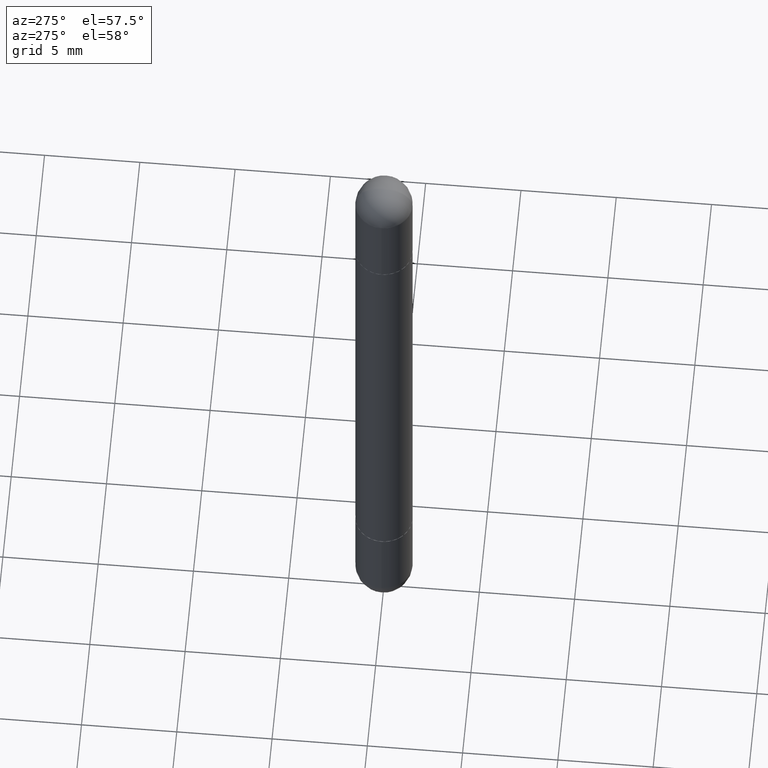
[diagram: clean part render]
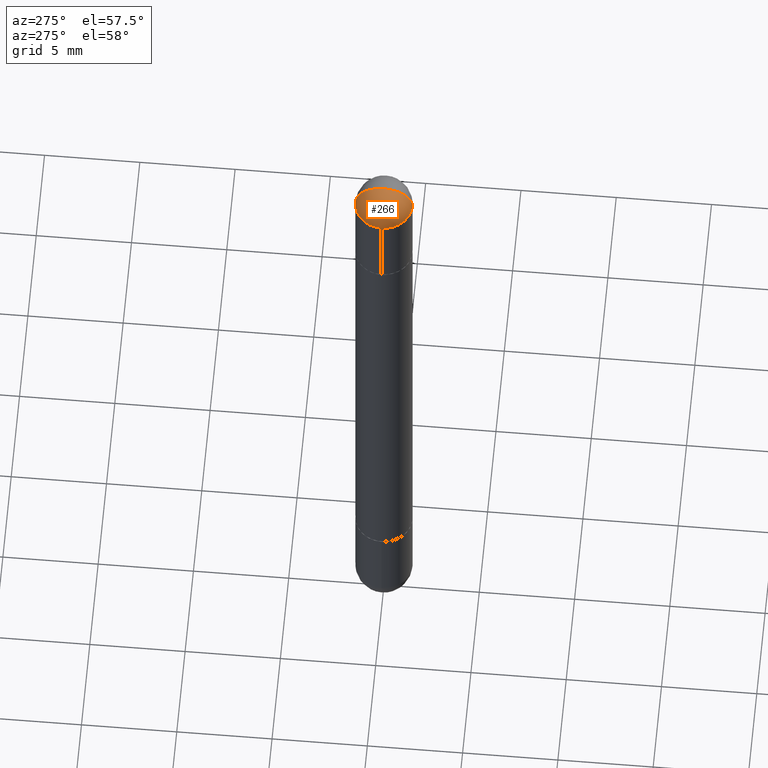
[diagram: same view with one face highlighted and labeled with its STEP entity id]
A machine part, auxiliary view. The second image highlights one B-rep face of the part: STEP entity #266.
In plain terms, the highlighted spherical surface has radius 1.4999 mm.
Its self-contained STEP definition (entity closure, byte-faithful):
#15 = CARTESIAN_POINT ( 'NONE',  ( -0.05905000000000001914, -4.303062891628101254E-15, -0.05905000000000028976 ) ) ;
#26 = CARTESIAN_POINT ( 'NONE',  ( 4.123439461174084467E-16, 0.05904999999999487742, -0.05905000000000008159 ) ) ;
#35 = ORIENTED_EDGE ( 'NONE', *, *, #485, .T. ) ;
#45 = EDGE_CURVE ( 'NONE', #211, #411, #137, .T. ) ;
#61 = AXIS2_PLACEMENT_3D ( 'NONE', #308, #415, #368 ) ;
#80 = VERTEX_POINT ( 'NONE', #26 ) ;
#122 = SPHERICAL_SURFACE ( 'NONE', #716, 0.05905000000000025506 ) ;
#127 = FACE_OUTER_BOUND ( 'NONE', #744, .T. ) ;
#137 = CIRCLE ( 'NONE', #483, 0.05905000000000025506 ) ;
#164 = VERTEX_POINT ( 'NONE', #15 ) ;
#178 = DIRECTION ( 'NONE',  ( -1.000000000000000000, 6.982962677686265922E-15, 4.883557194083112340E-29 ) ) ;
#205 = AXIS2_PLACEMENT_3D ( 'NONE', #214, #334, #401 ) ;
#211 = VERTEX_POINT ( 'NONE', #681 ) ;
#214 = CARTESIAN_POINT ( 'NONE',  ( 3.514260947928350449E-29, -5.017433257984542594E-15, -0.05905000000000028976 ) ) ;
#250 = CARTESIAN_POINT ( 'NONE',  ( -4.051124067683763770E-16, -0.05905000000000539678, -0.05905000000000049099 ) ) ;
#266 = ADVANCED_FACE ( 'NONE', ( #127 ), #122, .T. ) ;
#305 = CIRCLE ( 'NONE', #533, 0.05905000000000025506 ) ;
#306 = DIRECTION ( 'NONE',  ( 6.860497997771530774E-15, 1.000000000000000000, 0.000000000000000000 ) ) ;
#308 = CARTESIAN_POINT ( 'NONE',  ( 3.514260947928350449E-29, -5.017433257984542594E-15, -0.05905000000000028976 ) ) ;
#331 = ORIENTED_EDGE ( 'NONE', *, *, #45, .F. ) ;
#334 = DIRECTION ( 'NONE',  ( 2.445468806185136597E-29, -3.491481338843145583E-15, 1.000000000000000000 ) ) ;
#346 = ORIENTED_EDGE ( 'NONE', *, *, #695, .T. ) ;
#368 = DIRECTION ( 'NONE',  ( 1.000000000000000000, -6.982962677686270655E-15, 0.000000000000000000 ) ) ;
#372 = CARTESIAN_POINT ( 'NONE',  ( 3.183141170014464762E-29, -5.491615626124592102E-15, -0.05905000000000028976 ) ) ;
#401 = DIRECTION ( 'NONE',  ( 1.000000000000000000, -6.982962677686270655E-15, 0.000000000000000000 ) ) ;
#411 = VERTEX_POINT ( 'NONE', #250 ) ;
#415 = DIRECTION ( 'NONE',  ( 2.445468806185136597E-29, -3.491481338843145583E-15, 1.000000000000000000 ) ) ;
#480 = CARTESIAN_POINT ( 'NONE',  ( 3.183141170014464762E-29, -5.491615626124592102E-15, -0.05905000000000028976 ) ) ;
#483 = AXIS2_PLACEMENT_3D ( 'NONE', #372, #541, #306 ) ;
#485 = EDGE_CURVE ( 'NONE', #80, #164, #791, .T. ) ;
#486 = CIRCLE ( 'NONE', #61, 0.05905000000000001914 ) ;
#493 = CARTESIAN_POINT ( 'NONE',  ( 3.183141170014464762E-29, -5.491615626124592102E-15, -0.05905000000000028976 ) ) ;
#533 = AXIS2_PLACEMENT_3D ( 'NONE', #493, #178, #611 ) ;
#541 = DIRECTION ( 'NONE',  ( 1.000000000000000000, -6.860497997771530774E-15, -4.840798879624142912E-29 ) ) ;
#551 = DIRECTION ( 'NONE',  ( 6.982962677686265922E-15, 1.000000000000000000, 3.469747663417762014E-15 ) ) ;
#589 = ORIENTED_EDGE ( 'NONE', *, *, #655, .T. ) ;
#611 = DIRECTION ( 'NONE',  ( -6.982962677686266711E-15, -1.000000000000000000, 0.000000000000000000 ) ) ;
#655 = EDGE_CURVE ( 'NONE', #211, #80, #305, .T. ) ;
#666 = DIRECTION ( 'NONE',  ( 1.000000000000000000, -6.982962677686265922E-15, -4.883557194083112340E-29 ) ) ;
#681 = CARTESIAN_POINT ( 'NONE',  ( 3.330070981488499955E-29, -5.694171829508798064E-15, -3.414809992080329023E-17 ) ) ;
#695 = EDGE_CURVE ( 'NONE', #164, #411, #486, .T. ) ;
#716 = AXIS2_PLACEMENT_3D ( 'NONE', #480, #666, #551 ) ;
#744 = EDGE_LOOP ( 'NONE', ( #331, #589, #35, #346 ) ) ;
#791 = CIRCLE ( 'NONE', #205, 0.05905000000000001914 ) ;